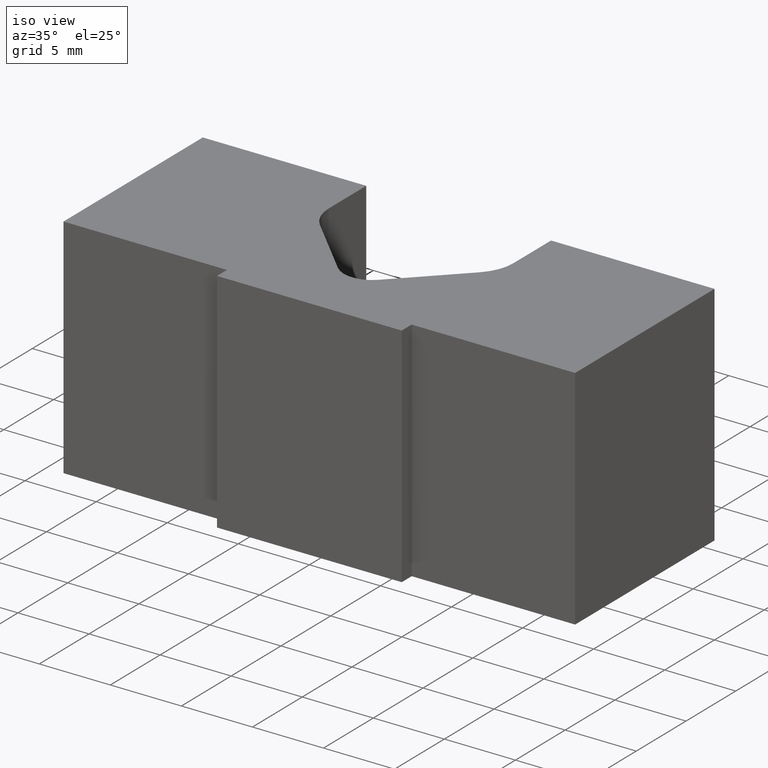
[diagram: clean part render]
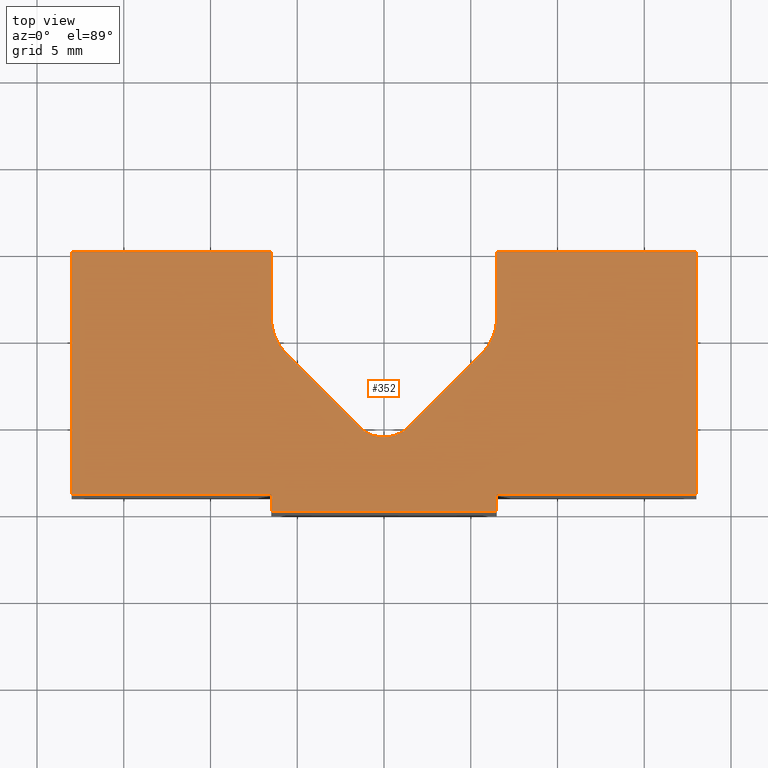
[diagram: tour spotlight — one face highlighted and labeled with its STEP entity id]
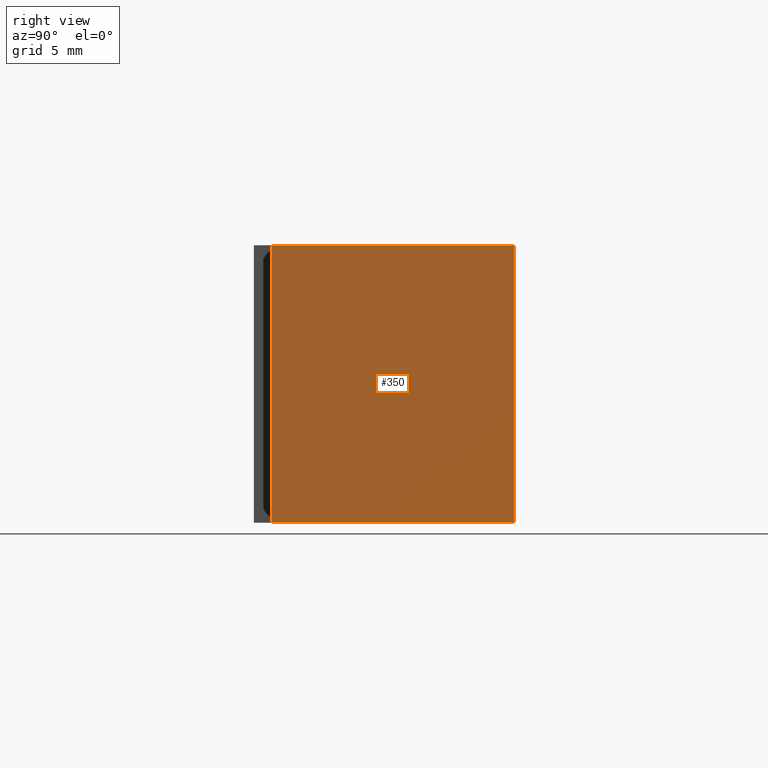
[diagram: tour spotlight — one face highlighted and labeled with its STEP entity id]
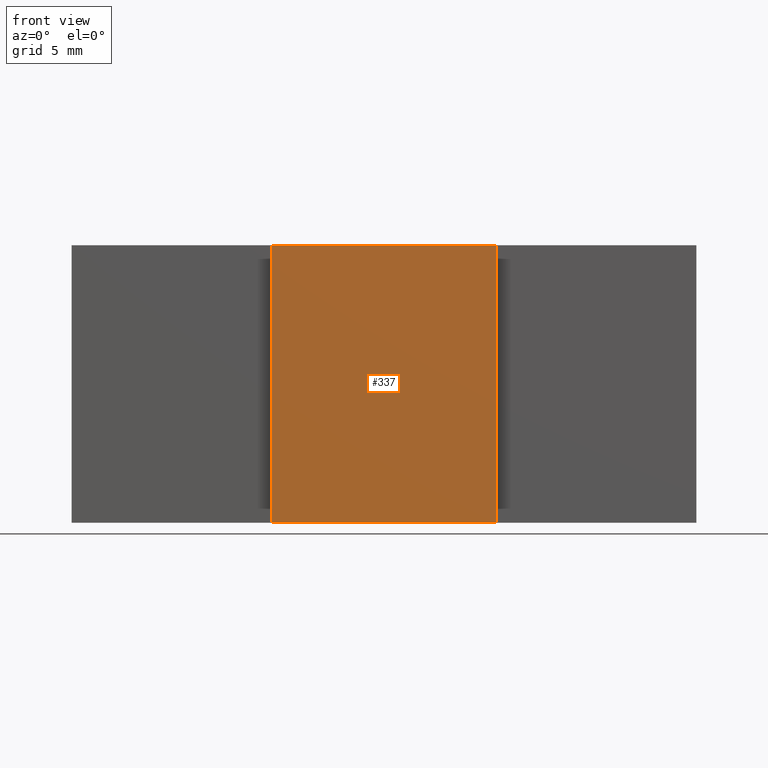
[diagram: tour spotlight — one face highlighted and labeled with its STEP entity id]
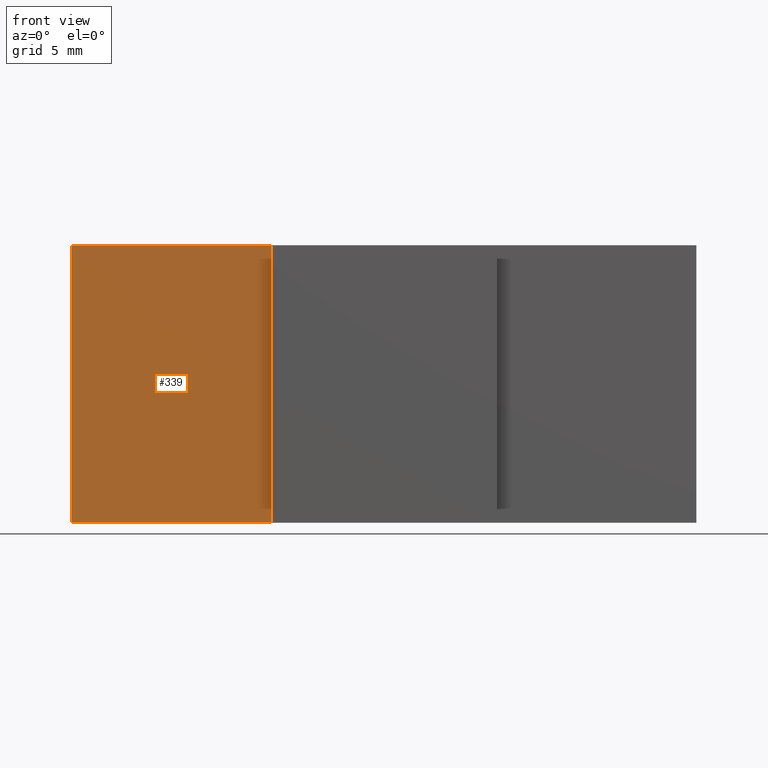
[diagram: tour spotlight — one face highlighted and labeled with its STEP entity id]
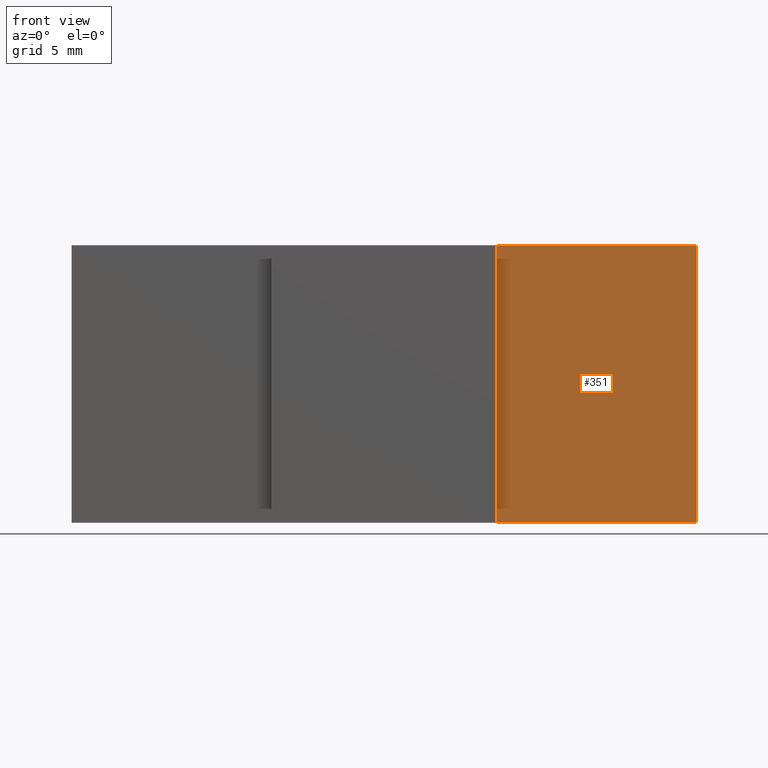
[diagram: tour spotlight — one face highlighted and labeled with its STEP entity id]
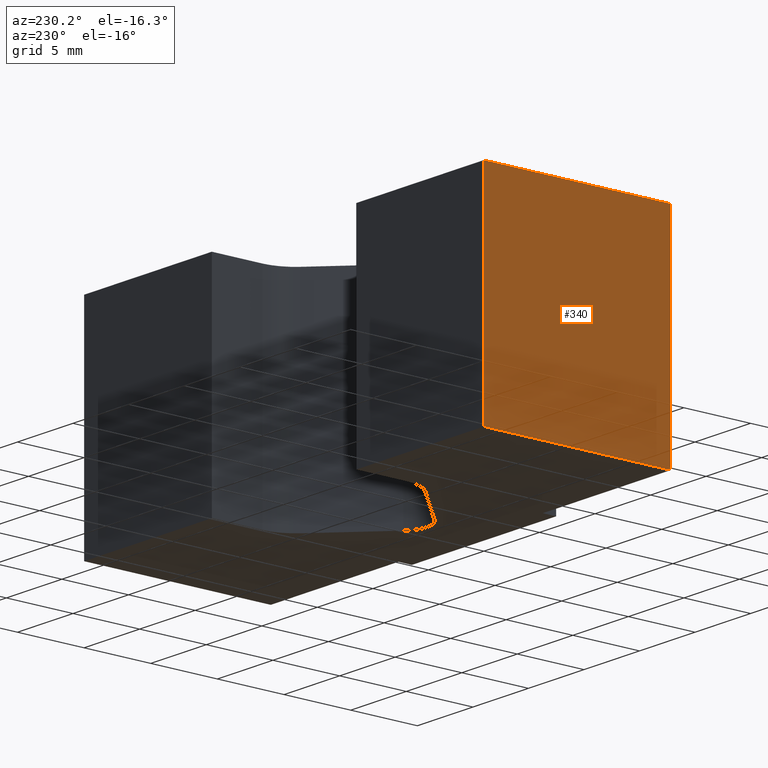
[diagram: tour spotlight — one face highlighted and labeled with its STEP entity id]
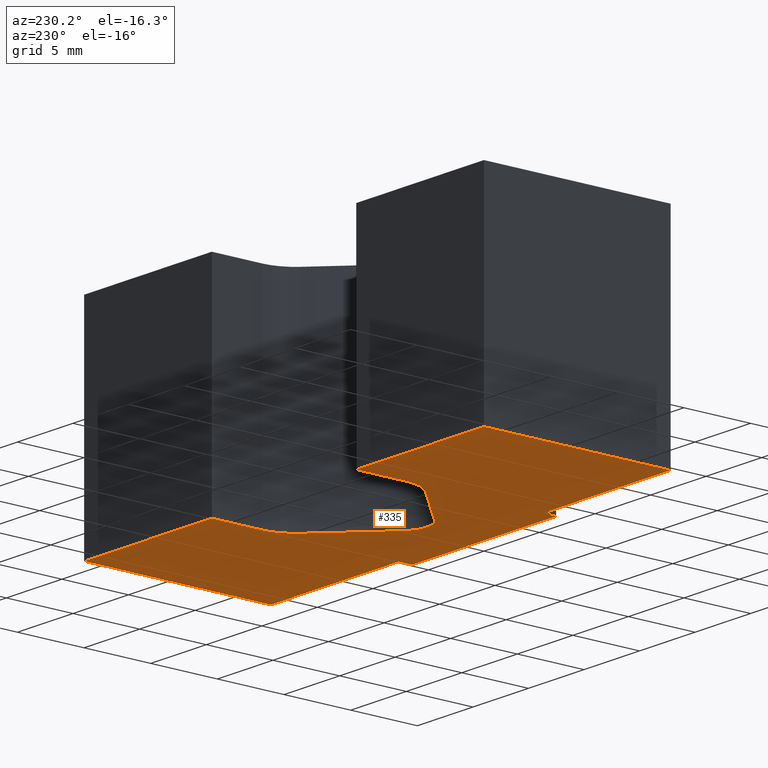
[diagram: tour spotlight — one face highlighted and labeled with its STEP entity id]
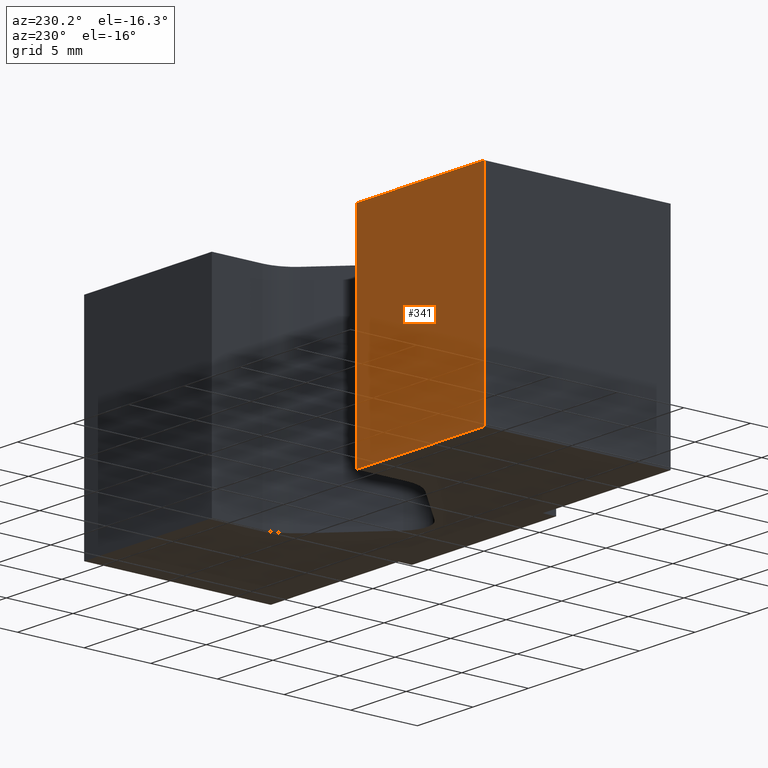
[diagram: tour spotlight — one face highlighted and labeled with its STEP entity id]
A machine part: a face-by-face anatomy tour. The part has 18 B-rep faces; the first image is the clean iso view, then the 8 largest visible faces are spotlighted one at a time (largest first), each with its STEP entity span.

Face 1 — top view, entity #352. In plain terms, the highlighted planar face has unit normal (0, 0, 1).
Definition (entity closure, byte-faithful):
#35=FACE_OUTER_BOUND('',#53,.T.);
#53=EDGE_LOOP('',(#304,#305,#306,#307,#308,#309,#310,#311,#312,#313,#314,
#315,#316,#317,#318,#319));
#57=CIRCLE('',#388,3.);
#58=CIRCLE('',#391,2.);
#59=CIRCLE('',#394,3.);
#73=LINE('',#529,#115);
#76=LINE('',#534,#118);
#78=LINE('',#538,#120);
#80=LINE('',#542,#122);
#82=LINE('',#546,#124);
#84=LINE('',#550,#126);
#86=LINE('',#554,#128);
#89=LINE('',#562,#131);
#92=LINE('',#570,#134);
#95=LINE('',#578,#137);
#97=LINE('',#582,#139);
#99=LINE('',#586,#141);
#101=LINE('',#589,#143);
#115=VECTOR('',#425,10.);
#118=VECTOR('',#430,10.);
#120=VECTOR('',#434,10.);
#122=VECTOR('',#438,10.);
#124=VECTOR('',#442,10.);
#126=VECTOR('',#446,10.);
#128=VECTOR('',#450,10.);
#131=VECTOR('',#459,10.);
#134=VECTOR('',#468,10.);
#137=VECTOR('',#477,10.);
#139=VECTOR('',#481,10.);
#141=VECTOR('',#485,10.);
#143=VECTOR('',#489,10.);
#160=VERTEX_POINT('',#527);
#161=VERTEX_POINT('',#528);
#162=VERTEX_POINT('',#533);
#163=VERTEX_POINT('',#537);
#164=VERTEX_POINT('',#541);
#165=VERTEX_POINT('',#545);
#166=VERTEX_POINT('',#549);
#167=VERTEX_POINT('',#553);
#168=VERTEX_POINT('',#557);
#169=VERTEX_POINT('',#561);
#170=VERTEX_POINT('',#565);
#171=VERTEX_POINT('',#569);
#172=VERTEX_POINT('',#573);
#173=VERTEX_POINT('',#577);
#174=VERTEX_POINT('',#581);
#175=VERTEX_POINT('',#585);
#192=EDGE_CURVE('',#160,#161,#73,.T.);
#195=EDGE_CURVE('',#161,#162,#76,.T.);
#197=EDGE_CURVE('',#162,#163,#78,.T.);
#199=EDGE_CURVE('',#163,#164,#80,.T.);
#201=EDGE_CURVE('',#164,#165,#82,.T.);
#203=EDGE_CURVE('',#165,#166,#84,.T.);
#205=EDGE_CURVE('',#166,#167,#86,.T.);
#207=EDGE_CURVE('',#167,#168,#57,.T.);
#209=EDGE_CURVE('',#168,#169,#89,.T.);
#211=EDGE_CURVE('',#169,#170,#58,.T.);
#213=EDGE_CURVE('',#170,#171,#92,.T.);
#215=EDGE_CURVE('',#171,#172,#59,.T.);
#217=EDGE_CURVE('',#172,#173,#95,.T.);
#219=EDGE_CURVE('',#173,#174,#97,.T.);
#221=EDGE_CURVE('',#174,#175,#99,.T.);
#223=EDGE_CURVE('',#175,#160,#101,.T.);
#304=ORIENTED_EDGE('',*,*,#192,.F.);
#305=ORIENTED_EDGE('',*,*,#223,.F.);
#306=ORIENTED_EDGE('',*,*,#221,.F.);
#307=ORIENTED_EDGE('',*,*,#219,.F.);
#308=ORIENTED_EDGE('',*,*,#217,.F.);
#309=ORIENTED_EDGE('',*,*,#215,.F.);
#310=ORIENTED_EDGE('',*,*,#213,.F.);
#311=ORIENTED_EDGE('',*,*,#211,.F.);
#312=ORIENTED_EDGE('',*,*,#209,.F.);
#313=ORIENTED_EDGE('',*,*,#207,.F.);
#314=ORIENTED_EDGE('',*,*,#205,.F.);
#315=ORIENTED_EDGE('',*,*,#203,.F.);
#316=ORIENTED_EDGE('',*,*,#201,.F.);
#317=ORIENTED_EDGE('',*,*,#199,.F.);
#318=ORIENTED_EDGE('',*,*,#197,.F.);
#319=ORIENTED_EDGE('',*,*,#195,.F.);
#334=PLANE('',#399);
#352=ADVANCED_FACE('',(#35),#334,.T.);
#388=AXIS2_PLACEMENT_3D('',#558,#454,#455);
#391=AXIS2_PLACEMENT_3D('',#566,#463,#464);
#394=AXIS2_PLACEMENT_3D('',#574,#472,#473);
#399=AXIS2_PLACEMENT_3D('',#590,#490,#491);
#425=DIRECTION('',(0.,-1.,0.));
#430=DIRECTION('',(-1.,0.,0.));
#434=DIRECTION('',(0.,1.,0.));
#438=DIRECTION('',(-1.,-9.65411325761005E-17,0.));
#442=DIRECTION('',(-6.34413156928661E-16,1.,0.));
#446=DIRECTION('',(1.,0.,0.));
#450=DIRECTION('',(2.9326087007726E-16,-1.,0.));
#454=DIRECTION('center_axis',(0.,0.,1.));
#455=DIRECTION('ref_axis',(-1.,0.,0.));
#459=DIRECTION('',(0.707106781186547,-0.707106781186548,0.));
#463=DIRECTION('center_axis',(0.,0.,1.));
#464=DIRECTION('ref_axis',(-0.707106781186547,-0.707106781186548,0.));
#468=DIRECTION('',(0.707106781186547,0.707106781186548,0.));
#472=DIRECTION('center_axis',(0.,0.,1.));
#473=DIRECTION('ref_axis',(0.707106781186548,-0.707106781186548,0.));
#477=DIRECTION('',(2.9326087007726E-16,1.,0.));
#481=DIRECTION('',(1.,0.,0.));
#485=DIRECTION('',(-6.34413156928661E-16,-1.,0.));
#489=DIRECTION('',(-1.,1.20676415720126E-16,0.));
#490=DIRECTION('center_axis',(0.,0.,1.));
#491=DIRECTION('ref_axis',(1.,0.,0.));
#527=CARTESIAN_POINT('',(6.5,0.999999999999999,8.));
#528=CARTESIAN_POINT('',(6.5,-1.11022302462516E-15,8.));
#529=CARTESIAN_POINT('',(6.5,0.999999999999999,8.));
#533=CARTESIAN_POINT('',(-6.5,-1.11022302462516E-15,8.));
#534=CARTESIAN_POINT('',(6.5,-1.11022302462516E-15,8.));
#537=CARTESIAN_POINT('',(-6.5,0.999999999999999,8.));
#538=CARTESIAN_POINT('',(-6.5,-1.11022302462516E-15,8.));
#541=CARTESIAN_POINT('',(-18.,0.999999999999998,8.));
#542=CARTESIAN_POINT('',(-6.5,0.999999999999999,8.));
#545=CARTESIAN_POINT('',(-18.,15.,8.));
#546=CARTESIAN_POINT('',(-18.,0.999999999999998,8.));
#549=CARTESIAN_POINT('',(-6.5,15.,8.));
#550=CARTESIAN_POINT('',(-18.,15.,8.));
#553=CARTESIAN_POINT('',(-6.5,11.2142135623731,8.));
#554=CARTESIAN_POINT('',(-6.5,15.,8.));
#557=CARTESIAN_POINT('',(-5.62132034355964,9.09289321881345,8.));
#558=CARTESIAN_POINT('Origin',(-3.5,11.2142135623731,8.));
#561=CARTESIAN_POINT('',(-1.4142135623731,4.8857864376269,8.));
#562=CARTESIAN_POINT('',(-5.62132034355964,9.09289321881345,8.));
#565=CARTESIAN_POINT('',(1.4142135623731,4.8857864376269,8.));
#566=CARTESIAN_POINT('Origin',(0.,6.3,8.));
#569=CARTESIAN_POINT('',(5.62132034355964,9.09289321881345,8.));
#570=CARTESIAN_POINT('',(1.4142135623731,4.8857864376269,8.));
#573=CARTESIAN_POINT('',(6.5,11.2142135623731,8.));
#574=CARTESIAN_POINT('Origin',(3.5,11.2142135623731,8.));
#577=CARTESIAN_POINT('',(6.5,15.,8.));
#578=CARTESIAN_POINT('',(6.5,11.2142135623731,8.));
#581=CARTESIAN_POINT('',(18.,15.,8.));
#582=CARTESIAN_POINT('',(6.5,15.,8.));
#585=CARTESIAN_POINT('',(18.,0.999999999999998,8.));
#586=CARTESIAN_POINT('',(18.,15.,8.));
#589=CARTESIAN_POINT('',(18.,0.999999999999998,8.));
#590=CARTESIAN_POINT('Origin',(-3.64291929955129E-16,7.19766006919959,8.));

Face 2 — right view, entity #350. In plain terms, the highlighted planar face has unit normal (1, -0, 0).
Definition (entity closure, byte-faithful):
#33=FACE_OUTER_BOUND('',#51,.T.);
#51=EDGE_LOOP('',(#296,#297,#298,#299));
#60=LINE('',#496,#102);
#98=LINE('',#583,#140);
#99=LINE('',#586,#141);
#100=LINE('',#587,#142);
#102=VECTOR('',#404,10.);
#140=VECTOR('',#482,10.);
#141=VECTOR('',#485,10.);
#142=VECTOR('',#486,10.);
#144=VERTEX_POINT('',#494);
#145=VERTEX_POINT('',#495);
#174=VERTEX_POINT('',#581);
#175=VERTEX_POINT('',#585);
#176=EDGE_CURVE('',#144,#145,#60,.T.);
#220=EDGE_CURVE('',#174,#145,#98,.T.);
#221=EDGE_CURVE('',#174,#175,#99,.T.);
#222=EDGE_CURVE('',#144,#175,#100,.T.);
#296=ORIENTED_EDGE('',*,*,#221,.T.);
#297=ORIENTED_EDGE('',*,*,#222,.F.);
#298=ORIENTED_EDGE('',*,*,#176,.T.);
#299=ORIENTED_EDGE('',*,*,#220,.F.);
#332=PLANE('',#397);
#350=ADVANCED_FACE('',(#33),#332,.T.);
#397=AXIS2_PLACEMENT_3D('',#584,#483,#484);
#404=DIRECTION('',(6.34413156928661E-16,1.,0.));
#482=DIRECTION('',(0.,0.,-1.));
#483=DIRECTION('center_axis',(1.,-6.34413156928661E-16,0.));
#484=DIRECTION('ref_axis',(0.,0.,-1.));
#485=DIRECTION('',(-6.34413156928661E-16,-1.,0.));
#486=DIRECTION('',(0.,0.,1.));
#494=CARTESIAN_POINT('',(18.,0.999999999999998,-8.));
#495=CARTESIAN_POINT('',(18.,15.,-8.));
#496=CARTESIAN_POINT('',(18.,15.,-8.));
#581=CARTESIAN_POINT('',(18.,15.,8.));
#583=CARTESIAN_POINT('',(18.,15.,0.));
#584=CARTESIAN_POINT('Origin',(18.,15.,0.));
#585=CARTESIAN_POINT('',(18.,0.999999999999998,8.));
#586=CARTESIAN_POINT('',(18.,15.,8.));
#587=CARTESIAN_POINT('',(18.,0.999999999999998,0.));

Face 3 — front view, entity #337. In plain terms, the highlighted planar face has unit normal (0, -1, 0).
Definition (entity closure, byte-faithful):
#20=FACE_OUTER_BOUND('',#38,.T.);
#38=EDGE_LOOP('',(#244,#245,#246,#247));
#63=LINE('',#502,#105);
#74=LINE('',#530,#116);
#76=LINE('',#534,#118);
#77=LINE('',#535,#119);
#105=VECTOR('',#407,10.);
#116=VECTOR('',#426,10.);
#118=VECTOR('',#430,10.);
#119=VECTOR('',#431,10.);
#147=VERTEX_POINT('',#499);
#148=VERTEX_POINT('',#501);
#161=VERTEX_POINT('',#528);
#162=VERTEX_POINT('',#533);
#179=EDGE_CURVE('',#148,#147,#63,.T.);
#193=EDGE_CURVE('',#161,#147,#74,.T.);
#195=EDGE_CURVE('',#161,#162,#76,.T.);
#196=EDGE_CURVE('',#162,#148,#77,.T.);
#244=ORIENTED_EDGE('',*,*,#195,.T.);
#245=ORIENTED_EDGE('',*,*,#196,.T.);
#246=ORIENTED_EDGE('',*,*,#179,.T.);
#247=ORIENTED_EDGE('',*,*,#193,.F.);
#322=PLANE('',#381);
#337=ADVANCED_FACE('',(#20),#322,.T.);
#381=AXIS2_PLACEMENT_3D('',#532,#428,#429);
#407=DIRECTION('',(1.,0.,0.));
#426=DIRECTION('',(0.,0.,-1.));
#428=DIRECTION('center_axis',(0.,-1.,0.));
#429=DIRECTION('ref_axis',(0.,0.,-1.));
#430=DIRECTION('',(-1.,0.,0.));
#431=DIRECTION('',(0.,0.,-1.));
#499=CARTESIAN_POINT('',(6.5,-1.11022302462516E-15,-8.));
#501=CARTESIAN_POINT('',(-6.5,-1.11022302462516E-15,-8.));
#502=CARTESIAN_POINT('',(6.5,-1.11022302462516E-15,-8.));
#528=CARTESIAN_POINT('',(6.5,-1.11022302462516E-15,8.));
#530=CARTESIAN_POINT('',(6.5,-1.11022302462516E-15,0.));
#532=CARTESIAN_POINT('Origin',(6.5,-1.11022302462516E-15,0.));
#533=CARTESIAN_POINT('',(-6.5,-1.11022302462516E-15,8.));
#534=CARTESIAN_POINT('',(6.5,-1.11022302462516E-15,8.));
#535=CARTESIAN_POINT('',(-6.5,-1.11022302462516E-15,0.));

Face 4 — front view, entity #339. In plain terms, the highlighted planar face has unit normal (0, -1, 0).
Definition (entity closure, byte-faithful):
#22=FACE_OUTER_BOUND('',#40,.T.);
#40=EDGE_LOOP('',(#252,#253,#254,#255));
#65=LINE('',#506,#107);
#79=LINE('',#539,#121);
#80=LINE('',#542,#122);
#81=LINE('',#543,#123);
#107=VECTOR('',#409,10.);
#121=VECTOR('',#435,10.);
#122=VECTOR('',#438,10.);
#123=VECTOR('',#439,10.);
#149=VERTEX_POINT('',#503);
#150=VERTEX_POINT('',#505);
#163=VERTEX_POINT('',#537);
#164=VERTEX_POINT('',#541);
#181=EDGE_CURVE('',#150,#149,#65,.T.);
#198=EDGE_CURVE('',#163,#149,#79,.T.);
#199=EDGE_CURVE('',#163,#164,#80,.T.);
#200=EDGE_CURVE('',#164,#150,#81,.T.);
#252=ORIENTED_EDGE('',*,*,#199,.T.);
#253=ORIENTED_EDGE('',*,*,#200,.T.);
#254=ORIENTED_EDGE('',*,*,#181,.T.);
#255=ORIENTED_EDGE('',*,*,#198,.F.);
#324=PLANE('',#383);
#339=ADVANCED_FACE('',(#22),#324,.T.);
#383=AXIS2_PLACEMENT_3D('',#540,#436,#437);
#409=DIRECTION('',(1.,9.65411325761005E-17,0.));
#435=DIRECTION('',(0.,0.,-1.));
#436=DIRECTION('center_axis',(9.65411325761005E-17,-1.,0.));
#437=DIRECTION('ref_axis',(0.,0.,-1.));
#438=DIRECTION('',(-1.,-9.65411325761005E-17,0.));
#439=DIRECTION('',(0.,0.,-1.));
#503=CARTESIAN_POINT('',(-6.5,0.999999999999999,-8.));
#505=CARTESIAN_POINT('',(-18.,0.999999999999998,-8.));
#506=CARTESIAN_POINT('',(-6.5,0.999999999999999,-8.));
#537=CARTESIAN_POINT('',(-6.5,0.999999999999999,8.));
#539=CARTESIAN_POINT('',(-6.5,0.999999999999999,0.));
#540=CARTESIAN_POINT('Origin',(-6.5,0.999999999999999,0.));
#541=CARTESIAN_POINT('',(-18.,0.999999999999998,8.));
#542=CARTESIAN_POINT('',(-6.5,0.999999999999999,8.));
#543=CARTESIAN_POINT('',(-18.,0.999999999999998,0.));

Face 5 — front view, entity #351. In plain terms, the highlighted planar face has unit normal (-0, -1, 0).
Definition (entity closure, byte-faithful):
#34=FACE_OUTER_BOUND('',#52,.T.);
#52=EDGE_LOOP('',(#300,#301,#302,#303));
#61=LINE('',#498,#103);
#75=LINE('',#531,#117);
#100=LINE('',#587,#142);
#101=LINE('',#589,#143);
#103=VECTOR('',#405,10.);
#117=VECTOR('',#427,10.);
#142=VECTOR('',#486,10.);
#143=VECTOR('',#489,10.);
#144=VERTEX_POINT('',#494);
#146=VERTEX_POINT('',#497);
#160=VERTEX_POINT('',#527);
#175=VERTEX_POINT('',#585);
#177=EDGE_CURVE('',#146,#144,#61,.T.);
#194=EDGE_CURVE('',#160,#146,#75,.T.);
#222=EDGE_CURVE('',#144,#175,#100,.T.);
#223=EDGE_CURVE('',#175,#160,#101,.T.);
#300=ORIENTED_EDGE('',*,*,#223,.T.);
#301=ORIENTED_EDGE('',*,*,#194,.T.);
#302=ORIENTED_EDGE('',*,*,#177,.T.);
#303=ORIENTED_EDGE('',*,*,#222,.T.);
#333=PLANE('',#398);
#351=ADVANCED_FACE('',(#34),#333,.T.);
#398=AXIS2_PLACEMENT_3D('',#588,#487,#488);
#405=DIRECTION('',(1.,-1.20676415720126E-16,0.));
#427=DIRECTION('',(0.,0.,-1.));
#486=DIRECTION('',(0.,0.,1.));
#487=DIRECTION('center_axis',(-1.20676415720126E-16,-1.,0.));
#488=DIRECTION('ref_axis',(0.,0.,-1.));
#489=DIRECTION('',(-1.,1.20676415720126E-16,0.));
#494=CARTESIAN_POINT('',(18.,0.999999999999998,-8.));
#497=CARTESIAN_POINT('',(6.5,0.999999999999999,-8.));
#498=CARTESIAN_POINT('',(18.,0.999999999999998,-8.));
#527=CARTESIAN_POINT('',(6.5,0.999999999999999,8.));
#531=CARTESIAN_POINT('',(6.5,0.999999999999999,0.));
#585=CARTESIAN_POINT('',(18.,0.999999999999998,8.));
#587=CARTESIAN_POINT('',(18.,0.999999999999998,0.));
#588=CARTESIAN_POINT('Origin',(18.,0.999999999999998,0.));
#589=CARTESIAN_POINT('',(18.,0.999999999999998,8.));

Face 6 — auxiliary view, entity #340. In plain terms, the highlighted planar face has unit normal (-1, -0, 0).
Definition (entity closure, byte-faithful):
#23=FACE_OUTER_BOUND('',#41,.T.);
#41=EDGE_LOOP('',(#256,#257,#258,#259));
#66=LINE('',#508,#108);
#81=LINE('',#543,#123);
#82=LINE('',#546,#124);
#83=LINE('',#547,#125);
#108=VECTOR('',#410,10.);
#123=VECTOR('',#439,10.);
#124=VECTOR('',#442,10.);
#125=VECTOR('',#443,10.);
#150=VERTEX_POINT('',#505);
#151=VERTEX_POINT('',#507);
#164=VERTEX_POINT('',#541);
#165=VERTEX_POINT('',#545);
#182=EDGE_CURVE('',#151,#150,#66,.T.);
#200=EDGE_CURVE('',#164,#150,#81,.T.);
#201=EDGE_CURVE('',#164,#165,#82,.T.);
#202=EDGE_CURVE('',#165,#151,#83,.T.);
#256=ORIENTED_EDGE('',*,*,#201,.T.);
#257=ORIENTED_EDGE('',*,*,#202,.T.);
#258=ORIENTED_EDGE('',*,*,#182,.T.);
#259=ORIENTED_EDGE('',*,*,#200,.F.);
#325=PLANE('',#384);
#340=ADVANCED_FACE('',(#23),#325,.T.);
#384=AXIS2_PLACEMENT_3D('',#544,#440,#441);
#410=DIRECTION('',(6.34413156928661E-16,-1.,0.));
#439=DIRECTION('',(0.,0.,-1.));
#440=DIRECTION('center_axis',(-1.,-6.34413156928661E-16,0.));
#441=DIRECTION('ref_axis',(0.,0.,1.));
#442=DIRECTION('',(-6.34413156928661E-16,1.,0.));
#443=DIRECTION('',(0.,0.,-1.));
#505=CARTESIAN_POINT('',(-18.,0.999999999999998,-8.));
#507=CARTESIAN_POINT('',(-18.,15.,-8.));
#508=CARTESIAN_POINT('',(-18.,0.999999999999998,-8.));
#541=CARTESIAN_POINT('',(-18.,0.999999999999998,8.));
#543=CARTESIAN_POINT('',(-18.,0.999999999999998,0.));
#544=CARTESIAN_POINT('Origin',(-18.,0.999999999999998,0.));
#545=CARTESIAN_POINT('',(-18.,15.,8.));
#546=CARTESIAN_POINT('',(-18.,0.999999999999998,8.));
#547=CARTESIAN_POINT('',(-18.,15.,0.));

Face 7 — auxiliary view, entity #335. In plain terms, the highlighted planar face has unit normal (0, 0, 1).
Definition (entity closure, byte-faithful):
#18=FACE_OUTER_BOUND('',#36,.T.);
#36=EDGE_LOOP('',(#224,#225,#226,#227,#228,#229,#230,#231,#232,#233,#234,
#235,#236,#237,#238,#239));
#54=CIRCLE('',#377,3.);
#55=CIRCLE('',#378,2.);
#56=CIRCLE('',#379,3.);
#60=LINE('',#496,#102);
#61=LINE('',#498,#103);
#62=LINE('',#500,#104);
#63=LINE('',#502,#105);
#64=LINE('',#504,#106);
#65=LINE('',#506,#107);
#66=LINE('',#508,#108);
#67=LINE('',#510,#109);
#68=LINE('',#512,#110);
#69=LINE('',#516,#111);
#70=LINE('',#520,#112);
#71=LINE('',#524,#113);
#72=LINE('',#525,#114);
#102=VECTOR('',#404,10.);
#103=VECTOR('',#405,10.);
#104=VECTOR('',#406,10.);
#105=VECTOR('',#407,10.);
#106=VECTOR('',#408,10.);
#107=VECTOR('',#409,10.);
#108=VECTOR('',#410,10.);
#109=VECTOR('',#411,10.);
#110=VECTOR('',#412,10.);
#111=VECTOR('',#415,10.);
#112=VECTOR('',#418,10.);
#113=VECTOR('',#421,10.);
#114=VECTOR('',#422,10.);
#144=VERTEX_POINT('',#494);
#145=VERTEX_POINT('',#495);
#146=VERTEX_POINT('',#497);
#147=VERTEX_POINT('',#499);
#148=VERTEX_POINT('',#501);
#149=VERTEX_POINT('',#503);
#150=VERTEX_POINT('',#505);
#151=VERTEX_POINT('',#507);
#152=VERTEX_POINT('',#509);
#153=VERTEX_POINT('',#511);
#154=VERTEX_POINT('',#513);
#155=VERTEX_POINT('',#515);
#156=VERTEX_POINT('',#517);
#157=VERTEX_POINT('',#519);
#158=VERTEX_POINT('',#521);
#159=VERTEX_POINT('',#523);
#176=EDGE_CURVE('',#144,#145,#60,.T.);
#177=EDGE_CURVE('',#146,#144,#61,.T.);
#178=EDGE_CURVE('',#147,#146,#62,.T.);
#179=EDGE_CURVE('',#148,#147,#63,.T.);
#180=EDGE_CURVE('',#149,#148,#64,.T.);
#181=EDGE_CURVE('',#150,#149,#65,.T.);
#182=EDGE_CURVE('',#151,#150,#66,.T.);
#183=EDGE_CURVE('',#152,#151,#67,.T.);
#184=EDGE_CURVE('',#153,#152,#68,.T.);
#185=EDGE_CURVE('',#154,#153,#54,.T.);
#186=EDGE_CURVE('',#155,#154,#69,.T.);
#187=EDGE_CURVE('',#156,#155,#55,.T.);
#188=EDGE_CURVE('',#157,#156,#70,.T.);
#189=EDGE_CURVE('',#158,#157,#56,.T.);
#190=EDGE_CURVE('',#159,#158,#71,.T.);
#191=EDGE_CURVE('',#145,#159,#72,.T.);
#224=ORIENTED_EDGE('',*,*,#176,.F.);
#225=ORIENTED_EDGE('',*,*,#177,.F.);
#226=ORIENTED_EDGE('',*,*,#178,.F.);
#227=ORIENTED_EDGE('',*,*,#179,.F.);
#228=ORIENTED_EDGE('',*,*,#180,.F.);
#229=ORIENTED_EDGE('',*,*,#181,.F.);
#230=ORIENTED_EDGE('',*,*,#182,.F.);
#231=ORIENTED_EDGE('',*,*,#183,.F.);
#232=ORIENTED_EDGE('',*,*,#184,.F.);
#233=ORIENTED_EDGE('',*,*,#185,.F.);
#234=ORIENTED_EDGE('',*,*,#186,.F.);
#235=ORIENTED_EDGE('',*,*,#187,.F.);
#236=ORIENTED_EDGE('',*,*,#188,.F.);
#237=ORIENTED_EDGE('',*,*,#189,.F.);
#238=ORIENTED_EDGE('',*,*,#190,.F.);
#239=ORIENTED_EDGE('',*,*,#191,.F.);
#320=PLANE('',#376);
#335=ADVANCED_FACE('',(#18),#320,.F.);
#376=AXIS2_PLACEMENT_3D('',#493,#402,#403);
#377=AXIS2_PLACEMENT_3D('',#514,#413,#414);
#378=AXIS2_PLACEMENT_3D('',#518,#416,#417);
#379=AXIS2_PLACEMENT_3D('',#522,#419,#420);
#402=DIRECTION('center_axis',(0.,0.,1.));
#403=DIRECTION('ref_axis',(1.,0.,0.));
#404=DIRECTION('',(6.34413156928661E-16,1.,0.));
#405=DIRECTION('',(1.,-1.20676415720126E-16,0.));
#406=DIRECTION('',(0.,1.,0.));
#407=DIRECTION('',(1.,0.,0.));
#408=DIRECTION('',(0.,-1.,0.));
#409=DIRECTION('',(1.,9.65411325761005E-17,0.));
#410=DIRECTION('',(6.34413156928661E-16,-1.,0.));
#411=DIRECTION('',(-1.,0.,0.));
#412=DIRECTION('',(-2.9326087007726E-16,1.,0.));
#413=DIRECTION('center_axis',(0.,0.,-1.));
#414=DIRECTION('ref_axis',(-1.,0.,0.));
#415=DIRECTION('',(-0.707106781186547,0.707106781186548,0.));
#416=DIRECTION('center_axis',(0.,0.,-1.));
#417=DIRECTION('ref_axis',(-0.707106781186547,-0.707106781186548,0.));
#418=DIRECTION('',(-0.707106781186547,-0.707106781186548,0.));
#419=DIRECTION('center_axis',(0.,0.,-1.));
#420=DIRECTION('ref_axis',(0.707106781186548,-0.707106781186548,0.));
#421=DIRECTION('',(-2.9326087007726E-16,-1.,0.));
#422=DIRECTION('',(-1.,0.,0.));
#493=CARTESIAN_POINT('Origin',(2.77555756156289E-16,7.19766006919959,-8.));
#494=CARTESIAN_POINT('',(18.,0.999999999999998,-8.));
#495=CARTESIAN_POINT('',(18.,15.,-8.));
#496=CARTESIAN_POINT('',(18.,15.,-8.));
#497=CARTESIAN_POINT('',(6.5,0.999999999999999,-8.));
#498=CARTESIAN_POINT('',(18.,0.999999999999998,-8.));
#499=CARTESIAN_POINT('',(6.5,-1.11022302462516E-15,-8.));
#500=CARTESIAN_POINT('',(6.5,0.999999999999999,-8.));
#501=CARTESIAN_POINT('',(-6.5,-1.11022302462516E-15,-8.));
#502=CARTESIAN_POINT('',(6.5,-1.11022302462516E-15,-8.));
#503=CARTESIAN_POINT('',(-6.5,0.999999999999999,-8.));
#504=CARTESIAN_POINT('',(-6.5,-1.11022302462516E-15,-8.));
#505=CARTESIAN_POINT('',(-18.,0.999999999999998,-8.));
#506=CARTESIAN_POINT('',(-6.5,0.999999999999999,-8.));
#507=CARTESIAN_POINT('',(-18.,15.,-8.));
#508=CARTESIAN_POINT('',(-18.,0.999999999999998,-8.));
#509=CARTESIAN_POINT('',(-6.5,15.,-8.));
#510=CARTESIAN_POINT('',(-18.,15.,-8.));
#511=CARTESIAN_POINT('',(-6.5,11.2142135623731,-8.));
#512=CARTESIAN_POINT('',(-6.5,15.,-8.));
#513=CARTESIAN_POINT('',(-5.62132034355964,9.09289321881345,-8.));
#514=CARTESIAN_POINT('Origin',(-3.5,11.2142135623731,-8.));
#515=CARTESIAN_POINT('',(-1.4142135623731,4.8857864376269,-8.));
#516=CARTESIAN_POINT('',(-5.62132034355964,9.09289321881345,-8.));
#517=CARTESIAN_POINT('',(1.4142135623731,4.8857864376269,-8.));
#518=CARTESIAN_POINT('Origin',(0.,6.3,-8.));
#519=CARTESIAN_POINT('',(5.62132034355964,9.09289321881345,-8.));
#520=CARTESIAN_POINT('',(1.4142135623731,4.8857864376269,-8.));
#521=CARTESIAN_POINT('',(6.5,11.2142135623731,-8.));
#522=CARTESIAN_POINT('Origin',(3.5,11.2142135623731,-8.));
#523=CARTESIAN_POINT('',(6.5,15.,-8.));
#524=CARTESIAN_POINT('',(6.5,11.2142135623731,-8.));
#525=CARTESIAN_POINT('',(6.5,15.,-8.));

Face 8 — auxiliary view, entity #341. In plain terms, the highlighted planar face has unit normal (0, 1, 0).
Definition (entity closure, byte-faithful):
#24=FACE_OUTER_BOUND('',#42,.T.);
#42=EDGE_LOOP('',(#260,#261,#262,#263));
#67=LINE('',#510,#109);
#83=LINE('',#547,#125);
#84=LINE('',#550,#126);
#85=LINE('',#551,#127);
#109=VECTOR('',#411,10.);
#125=VECTOR('',#443,10.);
#126=VECTOR('',#446,10.);
#127=VECTOR('',#447,10.);
#151=VERTEX_POINT('',#507);
#152=VERTEX_POINT('',#509);
#165=VERTEX_POINT('',#545);
#166=VERTEX_POINT('',#549);
#183=EDGE_CURVE('',#152,#151,#67,.T.);
#202=EDGE_CURVE('',#165,#151,#83,.T.);
#203=EDGE_CURVE('',#165,#166,#84,.T.);
#204=EDGE_CURVE('',#166,#152,#85,.T.);
#260=ORIENTED_EDGE('',*,*,#203,.T.);
#261=ORIENTED_EDGE('',*,*,#204,.T.);
#262=ORIENTED_EDGE('',*,*,#183,.T.);
#263=ORIENTED_EDGE('',*,*,#202,.F.);
#326=PLANE('',#385);
#341=ADVANCED_FACE('',(#24),#326,.T.);
#385=AXIS2_PLACEMENT_3D('',#548,#444,#445);
#411=DIRECTION('',(-1.,0.,0.));
#443=DIRECTION('',(0.,0.,-1.));
#444=DIRECTION('center_axis',(0.,1.,0.));
#445=DIRECTION('ref_axis',(0.,0.,1.));
#446=DIRECTION('',(1.,0.,0.));
#447=DIRECTION('',(0.,0.,-1.));
#507=CARTESIAN_POINT('',(-18.,15.,-8.));
#509=CARTESIAN_POINT('',(-6.5,15.,-8.));
#510=CARTESIAN_POINT('',(-18.,15.,-8.));
#545=CARTESIAN_POINT('',(-18.,15.,8.));
#547=CARTESIAN_POINT('',(-18.,15.,0.));
#548=CARTESIAN_POINT('Origin',(-18.,15.,0.));
#549=CARTESIAN_POINT('',(-6.5,15.,8.));
#550=CARTESIAN_POINT('',(-18.,15.,8.));
#551=CARTESIAN_POINT('',(-6.5,15.,0.));